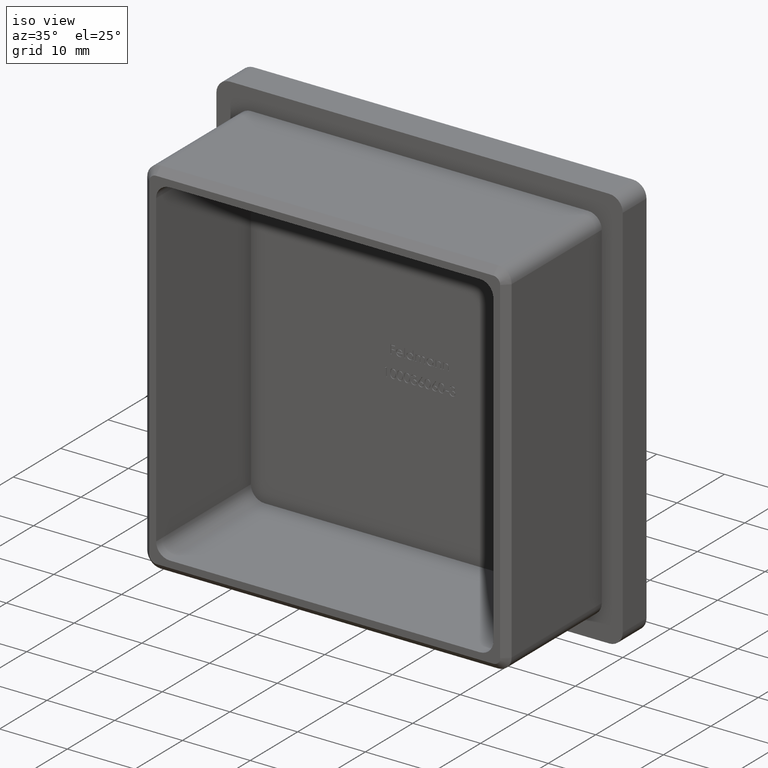
[diagram: clean part render]
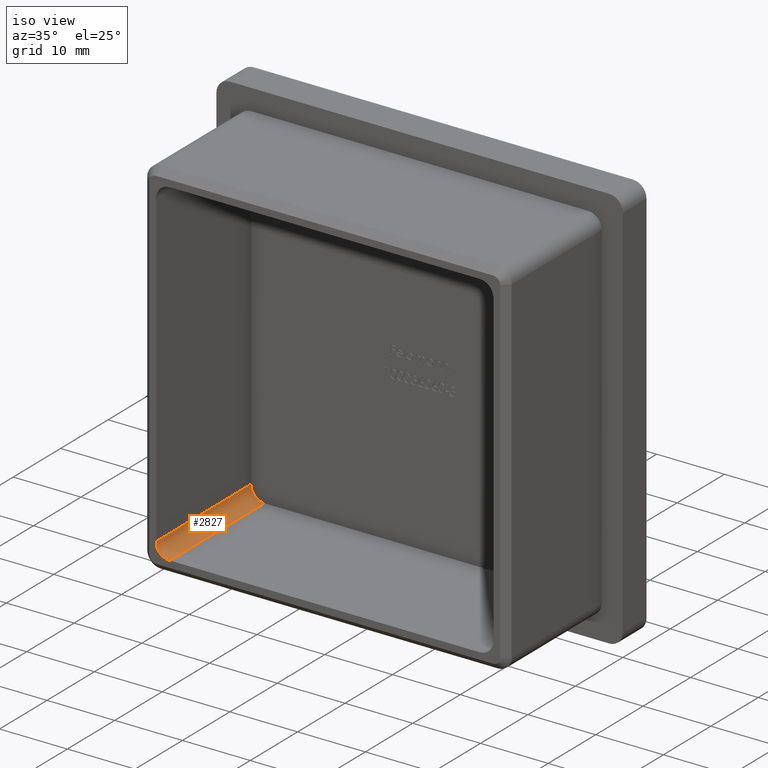
[diagram: same view with one face highlighted and labeled with its STEP entity id]
A machine part, iso view. The second image highlights one B-rep face of the part: STEP entity #2827.
In plain terms, the highlighted cylindrical surface (edge-blend (fillet) strip) has radius 2 mm, axis along (0, -1, 0).
Its self-contained STEP definition (entity closure, byte-faithful):
#221 = ORIENTED_EDGE ( 'NONE', *, *, #14438, .F. ) ;
#1136 = VECTOR ( 'NONE', #3934, 1000.000000000000000 ) ;
#1594 = DIRECTION ( 'NONE',  ( 0.0000000000000000000, 0.0000000000000000000, 1.000000000000000000 ) ) ;
#2594 = VERTEX_POINT ( 'NONE', #8013 ) ;
#2827 = ADVANCED_FACE ( 'NONE', ( #7704 ), #11115, .F. ) ;
#3933 = DIRECTION ( 'NONE',  ( 0.0000000000000000000, -1.000000000000000000, 0.0000000000000000000 ) ) ;
#3934 = DIRECTION ( 'NONE',  ( -0.0000000000000000000, -1.000000000000000000, -0.0000000000000000000 ) ) ;
#4381 = LINE ( 'NONE', #11846, #1136 ) ;
#4580 = EDGE_CURVE ( 'NONE', #5357, #15627, #10105, .T. ) ;
#5357 = VERTEX_POINT ( 'NONE', #6139 ) ;
#5380 = DIRECTION ( 'NONE',  ( 0.0000000000000000000, 1.000000000000000000, -0.0000000000000000000 ) ) ;
#5690 = ORIENTED_EDGE ( 'NONE', *, *, #4580, .F. ) ;
#6139 = CARTESIAN_POINT ( 'NONE',  ( -22.90000000000000200, -20.00000000000000000, -24.90000000000000900 ) ) ;
#6250 = EDGE_CURVE ( 'NONE', #2594, #5357, #4381, .T. ) ;
#6578 = CARTESIAN_POINT ( 'NONE',  ( -24.90000000000000600, 0.0000000000000000000, -22.90000000000000900 ) ) ;
#7704 = FACE_OUTER_BOUND ( 'NONE', #15681, .T. ) ;
#8013 = CARTESIAN_POINT ( 'NONE',  ( -22.90000000000000200, 0.0000000000000000000, -24.90000000000000900 ) ) ;
#8522 = DIRECTION ( 'NONE',  ( 0.0000000000000000000, 0.0000000000000000000, -1.000000000000000000 ) ) ;
#9092 = EDGE_CURVE ( 'NONE', #9212, #2594, #15089, .T. ) ;
#9212 = VERTEX_POINT ( 'NONE', #11107 ) ;
#9434 = CARTESIAN_POINT ( 'NONE',  ( -22.90000000000000200, 0.0000000000000000000, -22.90000000000000900 ) ) ;
#10105 = CIRCLE ( 'NONE', #15258, 2.000000000000001800 ) ;
#10712 = CARTESIAN_POINT ( 'NONE',  ( -24.90000000000000600, -20.00000000000000000, -22.89999999999999500 ) ) ;
#10982 = DIRECTION ( 'NONE',  ( -0.0000000000000000000, 1.000000000000000000, -0.0000000000000000000 ) ) ;
#11021 = ORIENTED_EDGE ( 'NONE', *, *, #6250, .F. ) ;
#11107 = CARTESIAN_POINT ( 'NONE',  ( -24.90000000000000600, 0.0000000000000000000, -22.89999999999999500 ) ) ;
#11115 = CYLINDRICAL_SURFACE ( 'NONE', #11904, 2.000000000000001800 ) ;
#11846 = CARTESIAN_POINT ( 'NONE',  ( -22.90000000000000200, -20.00000000000000000, -24.90000000000000900 ) ) ;
#11904 = AXIS2_PLACEMENT_3D ( 'NONE', #13134, #3933, #13085 ) ;
#12751 = VECTOR ( 'NONE', #5380, 1000.000000000000000 ) ;
#12975 = AXIS2_PLACEMENT_3D ( 'NONE', #9434, #13713, #1594 ) ;
#13085 = DIRECTION ( 'NONE',  ( 0.0000000000000000000, 0.0000000000000000000, -1.000000000000000000 ) ) ;
#13134 = CARTESIAN_POINT ( 'NONE',  ( -22.90000000000000200, -20.00000000000000000, -22.90000000000000900 ) ) ;
#13348 = LINE ( 'NONE', #6578, #12751 ) ;
#13471 = CARTESIAN_POINT ( 'NONE',  ( -22.90000000000000200, -20.00000000000000000, -22.90000000000000900 ) ) ;
#13713 = DIRECTION ( 'NONE',  ( -0.0000000000000000000, -1.000000000000000000, -0.0000000000000000000 ) ) ;
#14438 = EDGE_CURVE ( 'NONE', #15627, #9212, #13348, .T. ) ;
#14651 = ORIENTED_EDGE ( 'NONE', *, *, #9092, .F. ) ;
#15089 = CIRCLE ( 'NONE', #12975, 2.000000000000001800 ) ;
#15258 = AXIS2_PLACEMENT_3D ( 'NONE', #13471, #10982, #8522 ) ;
#15627 = VERTEX_POINT ( 'NONE', #10712 ) ;
#15681 = EDGE_LOOP ( 'NONE', ( #5690, #11021, #14651, #221 ) ) ;